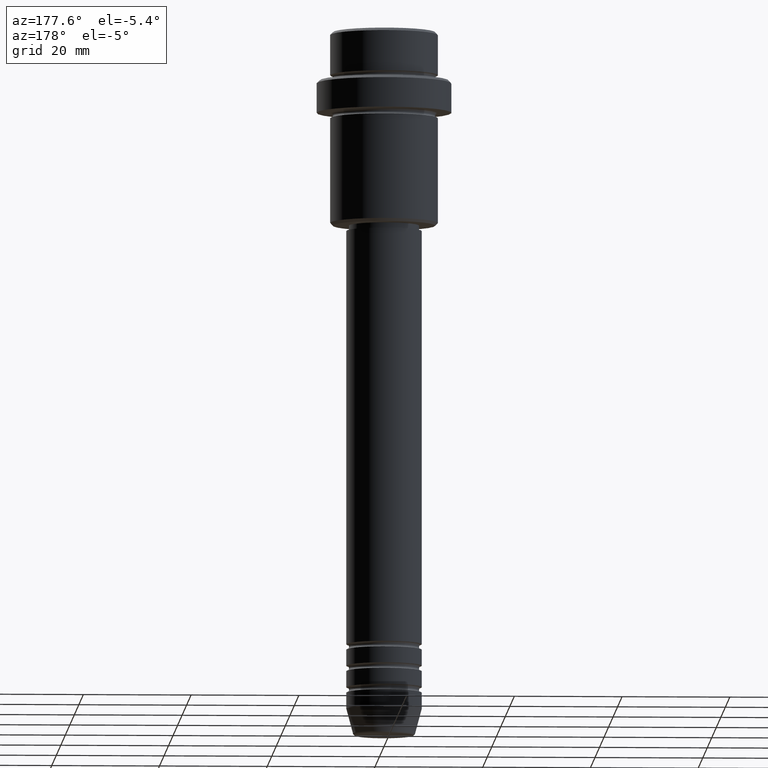
[diagram: clean part render]
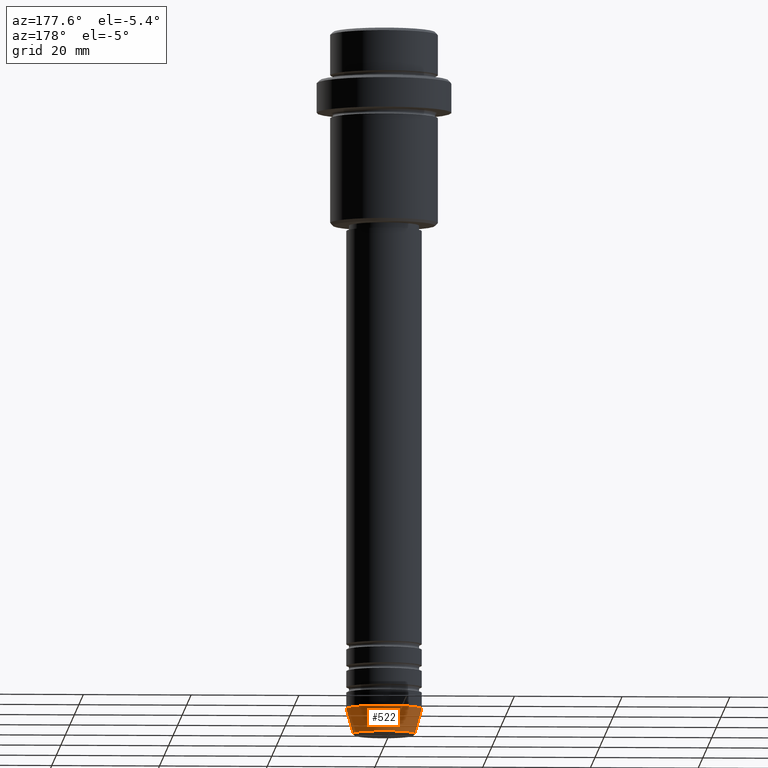
[diagram: same view with one face highlighted and labeled with its STEP entity id]
A machine part, auxiliary view. The second image highlights one B-rep face of the part: STEP entity #522.
In plain terms, the highlighted conical surface has half-angle 15 deg.
Its self-contained STEP definition (entity closure, byte-faithful):
#93 = ORIENTED_EDGE ( 'NONE', *, *, #729, .F. ) ;
#96 = CARTESIAN_POINT ( 'NONE',  ( 0.000000000000000000, 0.000000000000000000, -126.0000000000000000 ) ) ;
#180 = CARTESIAN_POINT ( 'NONE',  ( 5.759553456999435994, 0.000000000000000000, -130.6294095225512422 ) ) ;
#201 = DIRECTION ( 'NONE',  ( -0.2588190451025213501, 3.169619151431772337E-17, 0.9659258262890680902 ) ) ;
#212 = EDGE_CURVE ( 'NONE', #926, #905, #252, .T. ) ;
#214 = CARTESIAN_POINT ( 'NONE',  ( -7.000000000000000000, 8.572527594031473190E-16, -126.0000000000000000 ) ) ;
#248 = CARTESIAN_POINT ( 'NONE',  ( 0.000000000000000000, 0.000000000000000000, -130.6294095225512422 ) ) ;
#252 = CIRCLE ( 'NONE', #1084, 7.000000000000000000 ) ;
#258 = DIRECTION ( 'NONE',  ( -0.000000000000000000, -0.000000000000000000, 1.000000000000000000 ) ) ;
#429 = LINE ( 'NONE', #214, #903 ) ;
#448 = EDGE_LOOP ( 'NONE', ( #1064, #1142, #1237, #93 ) ) ;
#511 = CIRCLE ( 'NONE', #790, 5.759553456999435994 ) ;
#516 = DIRECTION ( 'NONE',  ( -0.000000000000000000, -0.000000000000000000, 1.000000000000000000 ) ) ;
#522 = ADVANCED_FACE ( 'NONE', ( #704 ), #1313, .T. ) ;
#605 = DIRECTION ( 'NONE',  ( 1.000000000000000000, 0.000000000000000000, 0.000000000000000000 ) ) ;
#618 = VERTEX_POINT ( 'NONE', #180 ) ;
#704 = FACE_OUTER_BOUND ( 'NONE', #448, .T. ) ;
#729 = EDGE_CURVE ( 'NONE', #618, #926, #957, .T. ) ;
#790 = AXIS2_PLACEMENT_3D ( 'NONE', #248, #258, #1131 ) ;
#900 = VECTOR ( 'NONE', #973, 1000.000000000000000 ) ;
#903 = VECTOR ( 'NONE', #201, 1000.000000000000000 ) ;
#905 = VERTEX_POINT ( 'NONE', #1325 ) ;
#912 = DIRECTION ( 'NONE',  ( -0.000000000000000000, -0.000000000000000000, 1.000000000000000000 ) ) ;
#926 = VERTEX_POINT ( 'NONE', #1246 ) ;
#957 = LINE ( 'NONE', #1392, #900 ) ;
#973 = DIRECTION ( 'NONE',  ( 0.2588190451025213501, 0.000000000000000000, 0.9659258262890680902 ) ) ;
#1032 = EDGE_CURVE ( 'NONE', #618, #1362, #511, .T. ) ;
#1064 = ORIENTED_EDGE ( 'NONE', *, *, #1032, .T. ) ;
#1084 = AXIS2_PLACEMENT_3D ( 'NONE', #96, #516, #1412 ) ;
#1106 = CARTESIAN_POINT ( 'NONE',  ( -5.759553456999435994, 7.812973149831951773E-16, -130.6294095225512422 ) ) ;
#1131 = DIRECTION ( 'NONE',  ( 1.000000000000000000, 0.000000000000000000, 0.000000000000000000 ) ) ;
#1142 = ORIENTED_EDGE ( 'NONE', *, *, #1209, .T. ) ;
#1209 = EDGE_CURVE ( 'NONE', #1362, #905, #429, .T. ) ;
#1224 = AXIS2_PLACEMENT_3D ( 'NONE', #1266, #912, #605 ) ;
#1237 = ORIENTED_EDGE ( 'NONE', *, *, #212, .F. ) ;
#1246 = CARTESIAN_POINT ( 'NONE',  ( 7.000000000000000000, 0.000000000000000000, -126.0000000000000000 ) ) ;
#1266 = CARTESIAN_POINT ( 'NONE',  ( 0.000000000000000000, 0.000000000000000000, -126.0000000000000000 ) ) ;
#1313 = CONICAL_SURFACE ( 'NONE', #1224, 7.000000000000000000, 0.2617993877991500740 ) ;
#1325 = CARTESIAN_POINT ( 'NONE',  ( -7.000000000000000000, 8.572527594031473190E-16, -126.0000000000000000 ) ) ;
#1362 = VERTEX_POINT ( 'NONE', #1106 ) ;
#1392 = CARTESIAN_POINT ( 'NONE',  ( 7.000000000000000000, 0.000000000000000000, -126.0000000000000000 ) ) ;
#1412 = DIRECTION ( 'NONE',  ( 1.000000000000000000, 0.000000000000000000, 0.000000000000000000 ) ) ;